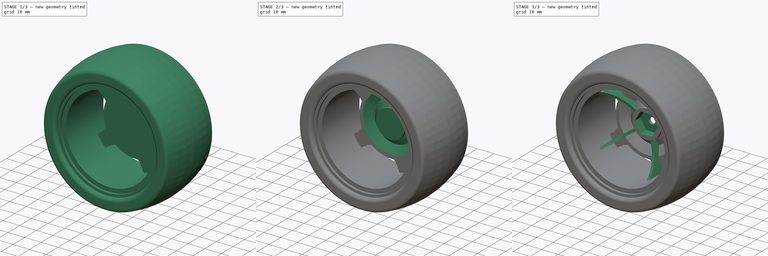
[diagram: build sequence overview — one tinted view per stage of 3, left to right]
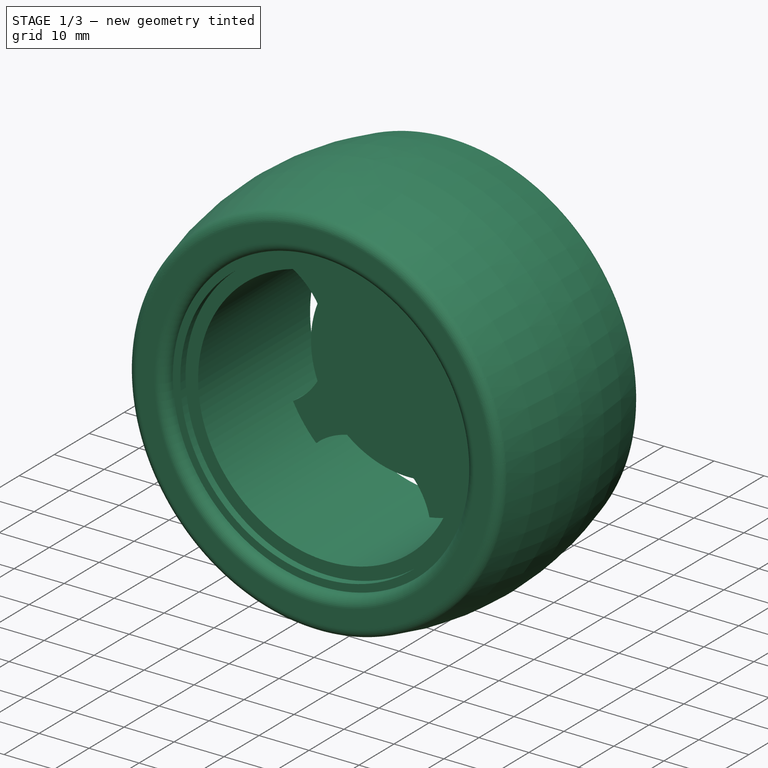
[diagram: stage 1 of 3 — iso view after this stage's code; geometry added in this stage tinted green]
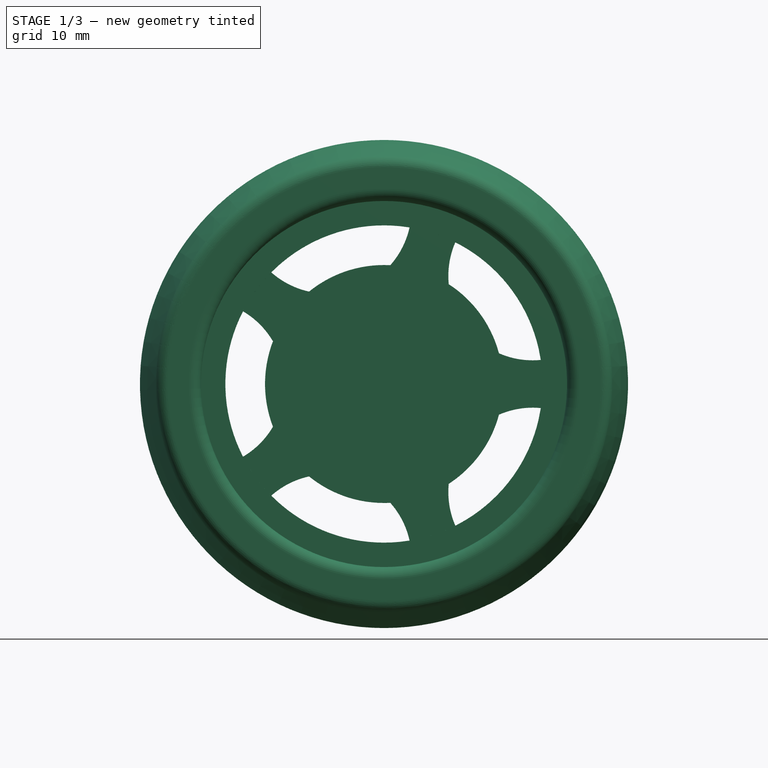
[diagram: stage 1 of 3 — front view after this stage's code; geometry added in this stage tinted green]
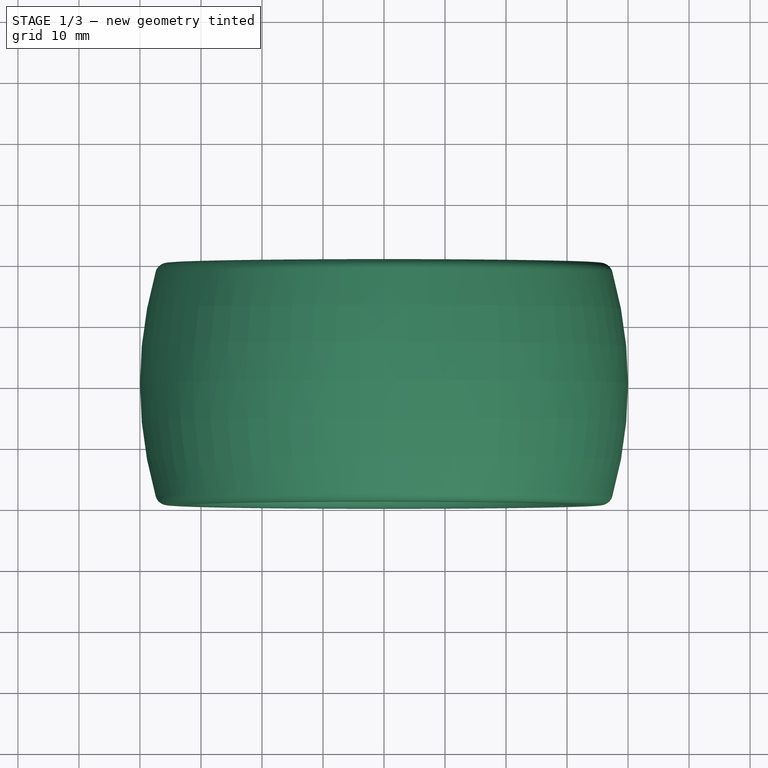
[diagram: stage 1 of 3 — top view after this stage's code; geometry added in this stage tinted green]
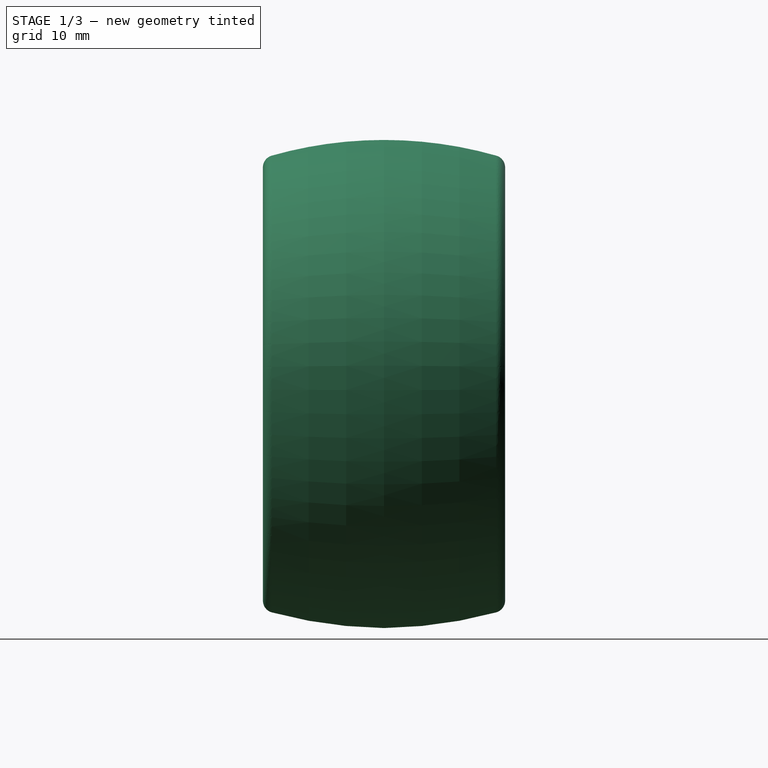
[diagram: stage 1 of 3 — right view after this stage's code; geometry added in this stage tinted green]
FCSTD DOCUMENT  (FreeCAD 0.18.4R)
Label: wheel
License: All rights reserved
LicenseURL: http://en.wikipedia.org/wiki/All_rights_reserved
objects: Sketcher::SketchObject×7, PartDesign::Pad×3, PartDesign::Revolution×2, PartDesign::Plane×1, PartDesign::Groove×1, PartDesign::PolarPattern×1, PartDesign::Pocket×1, PartDesign::Body×1
note: 24 computed .brp shape members not serialized (recipe doc carries the construction recipe); baked Part::Feature solids carry a one-line shape summary decoded from their .brp

FEATURE [Sketcher::SketchObject] Sketch
  MapMode = 5
  Placement = pos=(0,0,0) rot=(0.57735,0.57735,0.57735;2.0944rad)
  Support = -> [YZ_Plane]
  sketch-geometry (17):
    g0: LineSegment StartX=16 StartY=28.5 StartZ=0 EndX=16 EndY=26 EndZ=0
    g1: LineSegment StartX=16 StartY=26 StartZ=0 EndX=-16 EndY=26 EndZ=0
    g2: LineSegment StartX=-16 StartY=26 StartZ=0 EndX=-16 EndY=28.5 EndZ=0
    g3: LineSegment StartX=-16 StartY=28.5 StartZ=0 EndX=-17.5 EndY=28.5 EndZ=0
    g4: LineSegment StartX=-17.5 StartY=28.5 StartZ=0 EndX=-17.5 EndY=30 EndZ=0
    g5: LineSegment StartX=-17.5 StartY=30 StartZ=0 EndX=-17.85 EndY=30 EndZ=0
    g6: LineSegment StartX=-19.85 StartY=32 StartZ=0 EndX=-19.85 EndY=35.5078 EndZ=0
    g7: LineSegment StartX=19.85 StartY=35.5078 StartZ=0 EndX=19.85 EndY=32 EndZ=0
    g8: LineSegment StartX=17.85 StartY=30 StartZ=0 EndX=17.5 EndY=30 EndZ=0
    g9: LineSegment StartX=17.5 StartY=30 StartZ=0 EndX=17.5 EndY=28.5 EndZ=0
    g10: LineSegment StartX=17.5 StartY=28.5 StartZ=0 EndX=16 EndY=28.5 EndZ=0
    g11: ArcOfCircle CenterX=5.199e-13 CenterY=-27.17 CenterZ=0 NormalX=0 NormalY=0 NormalZ=1 AngleXU=0 Radius=67.17 StartAngle=1.5708 EndAngle=1.84824
    g12: ArcOfCircle CenterX=5.199e-13 CenterY=-27.17 CenterZ=0 NormalX=0 NormalY=0 NormalZ=1 AngleXU=0 Radius=67.17 StartAngle=1.29335 EndAngle=1.5708
    g13: ArcOfCircle CenterX=-17.85 CenterY=32 CenterZ=0 NormalX=0 NormalY=0 NormalZ=1 AngleXU=0 Radius=2 StartAngle=3.14159 EndAngle=4.71239
    g14: ArcOfCircle CenterX=17.85 CenterY=32 CenterZ=0 NormalX=0 NormalY=0 NormalZ=1 AngleXU=0 Radius=2 StartAngle=4.71239 EndAngle=6.28319
    g15: ArcOfCircle CenterX=-17.85 CenterY=35.5078 CenterZ=0 NormalX=0 NormalY=0 NormalZ=1 AngleXU=0 Radius=2 StartAngle=1.84824 EndAngle=3.14159
    g16: ArcOfCircle CenterX=17.85 CenterY=35.5078 CenterZ=0 NormalX=0 NormalY=0 NormalZ=1 AngleXU=0 Radius=2 StartAngle=-9e-16 EndAngle=1.29335
  constraints (44):
    c: Coincident(g0,g1)
    c: Coincident(g1,g2)
    c: Coincident(g2,g3)
    c: Coincident(g3,g4)
    c: Coincident(g4,g5)
    c: Coincident(g8,g9)
    c: Coincident(g9,g10)
    c: Coincident(g10,g0)
    c: Vertical(g0)
    c: Vertical(g9)
    c: Vertical(g7)
    c: Horizontal(g8)
    c: Horizontal(g10)
    c: Horizontal(g1)
    c: Vertical(g2)
    c: Horizontal(g3)
    c: Horizontal(g5)
    c: Symmetric(g4,g8,g-2)
    c: DistanceX(g4,g8) = 35
    c: Equal(g3,g10)
    c: DistanceX(g10,g10) = 1.5
    c: DistanceY(g-1,g1) = 26
    c: DistanceY(g-1,g3) = 28.5
    c: DistanceY(g-1,g4) = 30
    c: Symmetric(g2,g0,g-2)
    c: Tangent(g11,g12) = -1.5708
    c: PointOnObject(g11,g-2)
    c: Coincident(g12,g11)
    c: DistanceY(g-1,g11) = 40
    c: Tangent(g5,g13) = 1.5708
    c: Tangent(g6,g13) = 1.5708
    c: Tangent(g7,g14) = 1.5708
    c: Tangent(g8,g14) = 1.5708
    c: Radius(g14) = 2
    c: DistanceX(g6,g7) = 39.7
    c: DistanceY(g11,g-1) = 27.17
    c: Tangent(g11,g15) = -1.5708
    c: Tangent(g6,g15) = 1.5708
    c: Tangent(g12,g16) = -1.5708
    c: Tangent(g7,g16) = 1.5708
    c: Symmetric(g6,g7,g-2)
    c: Equal(g16,g15)
    c: Radius(g16) = 2
    c: Symmetric(g6,g7,g-2)
FEATURE [PartDesign::Revolution] Revolution
  Angle = 360
  Axis = (3e-16,1,-2e-16)
  Base = (0,0,0)
  Placement = pos=(0,0,0) rot=(0.57735,0.57735,0.57735;2.0944rad)
  Profile = -> Sketch
  ReferenceAxis = -> Sketch [H_Axis]
FEATURE [PartDesign::Plane] DatumPlane
  AttachmentOffset = pos=(0,0,7) rot=(0,0,1;0rad)
  Length = 95.925
  MapMode = 4
  Placement = pos=(0,7,0) rot=(0.57735,0.57735,0.57735;4.18879rad)
  ResizeMode = 0
  Support = -> [Revolution]
  Width = 95.9576
FEATURE [Sketcher::SketchObject] Sketch001
  MapMode = 5
  Placement = pos=(0,7,0) rot=(0.57735,0.57735,0.57735;4.18879rad)
  Support = -> [DatumPlane]
  sketch-geometry (26):
    g0: LineSegment [constr] StartX=7 StartY=-18.2003 StartZ=0 EndX=19.4726 EndY=1.0332 EndZ=0
    g1: LineSegment [constr] StartX=19.4726 StartY=1.0332 StartZ=0 EndX=5.03473 EndY=18.8388 EndZ=0
    g2: LineSegment [constr] StartX=5.03473 StartY=18.8388 StartZ=0 EndX=-16.361 EndY=10.6098 EndZ=0
    g3: LineSegment [constr] StartX=-16.361 StartY=10.6098 StartZ=0 EndX=-15.1464 EndY=-12.2816 EndZ=0
    g4: LineSegment [constr] StartX=-15.1464 StartY=-12.2816 StartZ=0 EndX=7 EndY=-18.2003 EndZ=0
    g5: Circle [constr] CenterX=0 CenterY=0 CenterZ=0 NormalX=0 NormalY=0 NormalZ=1 AngleXU=0 Radius=19.5
    g6: ArcOfCircle CenterX=0 CenterY=0 CenterZ=0 NormalX=0 NormalY=0 NormalZ=1 AngleXU=0 Radius=19.5 StartAngle=5.60186 EndAngle=6.33619
    g7: ArcOfCircle CenterX=0 CenterY=0 CenterZ=0 NormalX=0 NormalY=0 NormalZ=1 AngleXU=0 Radius=19.5 StartAngle=4.34522 EndAngle=5.07956
    g8: ArcOfCircle CenterX=0 CenterY=0 CenterZ=0 NormalX=0 NormalY=0 NormalZ=1 AngleXU=0 Radius=19.5 StartAngle=3.08858 EndAngle=3.82292
    g9: ArcOfCircle CenterX=0 CenterY=0 CenterZ=0 NormalX=0 NormalY=0 NormalZ=1 AngleXU=0 Radius=19.5 StartAngle=1.83195 EndAngle=2.56628
    g10: ArcOfCircle CenterX=0 CenterY=0 CenterZ=0 NormalX=0 NormalY=0 NormalZ=1 AngleXU=0 Radius=19.5 StartAngle=0.575309 EndAngle=1.30965
    g11: ArcOfCircle CenterX=17.7078 CenterY=24.3726 CenterZ=0 NormalX=0 NormalY=0 NormalZ=1 AngleXU=0 Radius=13.8285 StartAngle=3.00933 EndAngle=3.5533
    g12: ArcOfCircle CenterX=17.7078 CenterY=24.3726 CenterZ=0 NormalX=0 NormalY=0 NormalZ=1 AngleXU=0 Radius=13.8285 StartAngle=4.61484 EndAngle=5.15882
    g13: ArcOfCircle CenterX=0 CenterY=0 CenterZ=0 NormalX=0 NormalY=0 NormalZ=1 AngleXU=0 Radius=26.5 StartAngle=0.162637 EndAngle=0.465682
    g14: ArcOfCircle CenterX=0 CenterY=0 CenterZ=0 NormalX=0 NormalY=0 NormalZ=1 AngleXU=0 Radius=26.5 StartAngle=1.41927 EndAngle=1.72232
    g15: ArcOfCircle CenterX=-17.7078 CenterY=24.3726 CenterZ=0 NormalX=0 NormalY=0 NormalZ=1 AngleXU=0 Radius=13.8285 StartAngle=5.87148 EndAngle=6.41545
    g16: ArcOfCircle CenterX=-17.7078 CenterY=24.3726 CenterZ=0 NormalX=0 NormalY=0 NormalZ=1 AngleXU=0 Radius=13.8285 StartAngle=4.26596 EndAngle=4.80994
    g17: ArcOfCircle CenterX=-28.6518 CenterY=-9.30952 CenterZ=0 NormalX=0 NormalY=0 NormalZ=1 AngleXU=0 Radius=13.8285 StartAngle=0.844931 EndAngle=1.3889
    g18: ArcOfCircle CenterX=-28.6518 CenterY=-9.30952 CenterZ=0 NormalX=0 NormalY=0 NormalZ=1 AngleXU=0 Radius=13.8285 StartAngle=5.5226 EndAngle=6.06657
    g19: ArcOfCircle CenterX=3.8e-15 CenterY=-30.1262 CenterZ=0 NormalX=0 NormalY=0 NormalZ=1 AngleXU=0 Radius=13.8285 StartAngle=2.10157 EndAngle=2.64554
    g20: ArcOfCircle CenterX=3.8e-15 CenterY=-30.1262 CenterZ=0 NormalX=0 NormalY=0 NormalZ=1 AngleXU=0 Radius=13.8285 StartAngle=0.496052 EndAngle=1.04002
    g21: ArcOfCircle CenterX=28.6518 CenterY=-9.30952 CenterZ=0 NormalX=0 NormalY=0 NormalZ=1 AngleXU=0 Radius=13.8285 StartAngle=3.35821 EndAngle=3.90218
    g22: ArcOfCircle CenterX=28.6518 CenterY=-9.30952 CenterZ=0 NormalX=0 NormalY=0 NormalZ=1 AngleXU=0 Radius=13.8285 StartAngle=1.75269 EndAngle=2.29666
    g23: ArcOfCircle CenterX=0 CenterY=0 CenterZ=0 NormalX=0 NormalY=0 NormalZ=1 AngleXU=0 Radius=26.5 StartAngle=2.67591 EndAngle=2.97896
    g24: ArcOfCircle CenterX=0 CenterY=0 CenterZ=0 NormalX=0 NormalY=0 NormalZ=1 AngleXU=0 Radius=26.5 StartAngle=3.93255 EndAngle=4.23559
    g25: ArcOfCircle CenterX=0 CenterY=0 CenterZ=0 NormalX=0 NormalY=0 NormalZ=1 AngleXU=0 Radius=26.5 StartAngle=5.18918 EndAngle=5.49223
  constraints (74):
    c: Coincident(g0,g1)
    c: Coincident(g1,g2)
    c: Coincident(g2,g3)
    c: Coincident(g3,g4)
    c: Coincident(g4,g0)
    c: Equal(g0, g1-g4) x4
    c: PointOnObject(g0,g5)
    c: PointOnObject(g1,g5)
    c: PointOnObject(g2,g5)
    c: PointOnObject(g3,g5)
    c: PointOnObject(g4,g5)
    c: Coincident(g5,g-1)
    c: Coincident(g10,g6)
    c: Coincident(g10,g7)
    c: Coincident(g10,g8)
    c: Coincident(g10,g9)
    c: Coincident(g10,g-1)
    c: Coincident(g10,g1)
    c: Coincident(g6,g0)
    c: Coincident(g7,g0)
    c: Coincident(g8,g3)
    c: Coincident(g9,g2)
    c: Distance(g8,g8) = 14
    c: Distance(g9,g9) = 14
    c: Distance(g10,g10) = 14
    c: Distance(g6,g6) = 14
    c: Distance(g7,g7) = 14
    c: Diameter(g5) = 39
    c: DistanceX(g-2,g7) = -7
    c: Coincident(g11,g10)
    c: Coincident(g12,g10)
    c: Coincident(g12,g11)
    c: Coincident(g14,g13)
    c: Coincident(g14,g6)
    c: Coincident(g14,g11)
    c: Coincident(g13,g12)
    c: Equal(g14,g13)
    c: Diameter(g14) = 53
    c: Equal(g12,g11)
    c: Coincident(g15,g16)
    c: Coincident(g15,g14)
    c: Coincident(g15,g9)
    c: Coincident(g16,g9)
    c: Coincident(g17,g8)
    c: Coincident(g17,g18)
    c: Coincident(g18,g8)
    c: Equal(g18,g17)
    c: Equal(g17,g16)
    c: Equal(g16,g15)
    c: Equal(g15,g11)
    c: Coincident(g22,g21)
    c: Coincident(g20,g19)
    c: Coincident(g19,g7)
    c: Coincident(g20,g7)
    c: Coincident(g21,g6)
    c: Coincident(g22,g6)
    c: Coincident(g22,g13)
    c: Equal(g19,g20)
    c: Equal(g20,g21)
    c: Equal(g21,g22)
    c: Equal(g22,g12)
    c: Coincident(g25,g23)
    c: Coincident(g25,g24)
    c: Coincident(g25,g6)
    c: Coincident(g20,g25)
    c: Coincident(g21,g25)
    c: Coincident(g24,g19)
    c: Coincident(g24,g18)
    c: Coincident(g23,g17)
    c: Coincident(g23,g16)
    c: Equal(g23,g24)
    c: Equal(g24,g25)
    c: Equal(g25,g13)
    c: Distance(g16,g17) = 8
FEATURE [PartDesign::Pad] Pad
  BaseFeature = -> Revolution
  Length = 2
  Length2 = 100
  Placement = pos=(0,0,0) rot=(0.57735,0.57735,0.57735;2.0944rad)
  Profile = -> Sketch001
  Type = 0
FEATURE [Sketcher::SketchObject] Sketch002
  MapMode = 5
  Placement = pos=(0,7,0) rot=(0.57735,0.57735,-0.57735;2.0944rad)
  Support = -> [Pad]
  sketch-geometry (1):
    g0: Circle CenterX=0 CenterY=0 CenterZ=0 NormalX=0 NormalY=0 NormalZ=1 AngleXU=0 Radius=8.5
  constraints (2):
    c: Coincident(g0,g-1)
    c: Diameter(g0) = 17
FEATURE [Sketcher::SketchObject] Sketch004
  MapMode = 5
  Placement = pos=(0,0,0) rot=(0.57735,0.57735,0.57735;2.0944rad)
  Support = -> [YZ_Plane]
  sketch-geometry (9):
    g0: LineSegment StartX=9 StartY=-2 StartZ=0 EndX=9 EndY=-19.5 EndZ=0
    g1: LineSegment StartX=9 StartY=-19.5 StartZ=0 EndX=9.5 EndY=-19.5 EndZ=0
    g2: LineSegment StartX=9.5 StartY=-19.5 StartZ=0 EndX=12 EndY=-12.5 EndZ=0
    g3: LineSegment StartX=12 StartY=-12.5 StartZ=0 EndX=11 EndY=-7 EndZ=0
    g4: LineSegment StartX=11 StartY=-7 StartZ=0 EndX=14 EndY=-7 EndZ=0
    g5: LineSegment StartX=14 StartY=-7 StartZ=0 EndX=14 EndY=-5 EndZ=0
    g6: LineSegment StartX=14 StartY=-5 StartZ=0 EndX=12 EndY=-5 EndZ=0
    g7: LineSegment StartX=12 StartY=-5 StartZ=0 EndX=12 EndY=-2 EndZ=0
    g8: LineSegment StartX=12 StartY=-2 StartZ=0 EndX=9 EndY=-2 EndZ=0
  constraints (27):
    c: Coincident(g0,g1)
    c: Coincident(g1,g2)
    c: Coincident(g2,g3)
    c: Coincident(g3,g4)
    c: Coincident(g4,g5)
    c: Coincident(g5,g6)
    c: Coincident(g6,g7)
    c: Coincident(g7,g8)
    c: Coincident(g0,g8)
    c: Vertical(g0)
    c: DistanceX(g-1,g0) = 9
    c: DistanceY(g0,g-1) = 19.5
    c: Horizontal(g1)
    c: DistanceY(g0,g-1) = 2
    c: Horizontal(g8)
    c: Vertical(g7)
    c: DistanceX(g8,g8) = 3
    c: Horizontal(g6)
    c: DistanceX(g6,g6) = 2
    c: DistanceY(g5,g-1) = 5
    c: DistanceY(g4,g-1) = 7
    c: Vertical(g5)
    c: DistanceX(g0,g2) = 3
    c: DistanceX(g1,g1) = 0.5
    c: Horizontal(g4)
    c: DistanceX(g4,g4) = 3
    c: DistanceY(g2,g-1) = 12.5
FEATURE [PartDesign::Revolution] Revolution001
  Angle = 360
  Axis = (3e-16,1,-2e-16)
  Base = (0,0,0)
  BaseFeature = -> Pad
  Placement = pos=(0,0,0) rot=(0.57735,0.57735,0.57735;2.0944rad)
  Profile = -> Sketch004
  ReferenceAxis = -> Sketch004 [H_Axis]
  Reversed = true
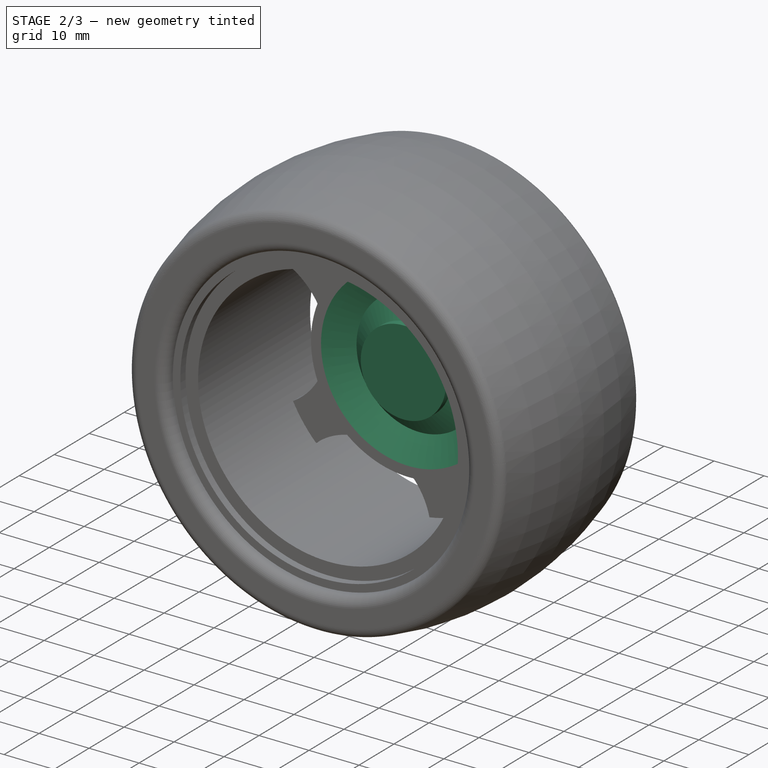
[diagram: stage 2 of 3 — iso view after this stage's code; geometry added in this stage tinted green]
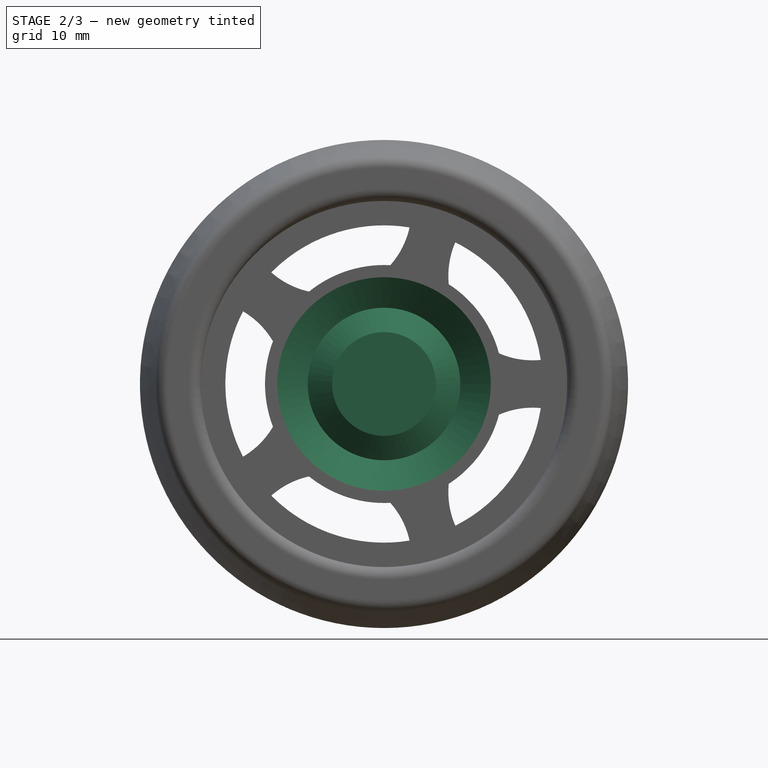
[diagram: stage 2 of 3 — front view after this stage's code; geometry added in this stage tinted green]
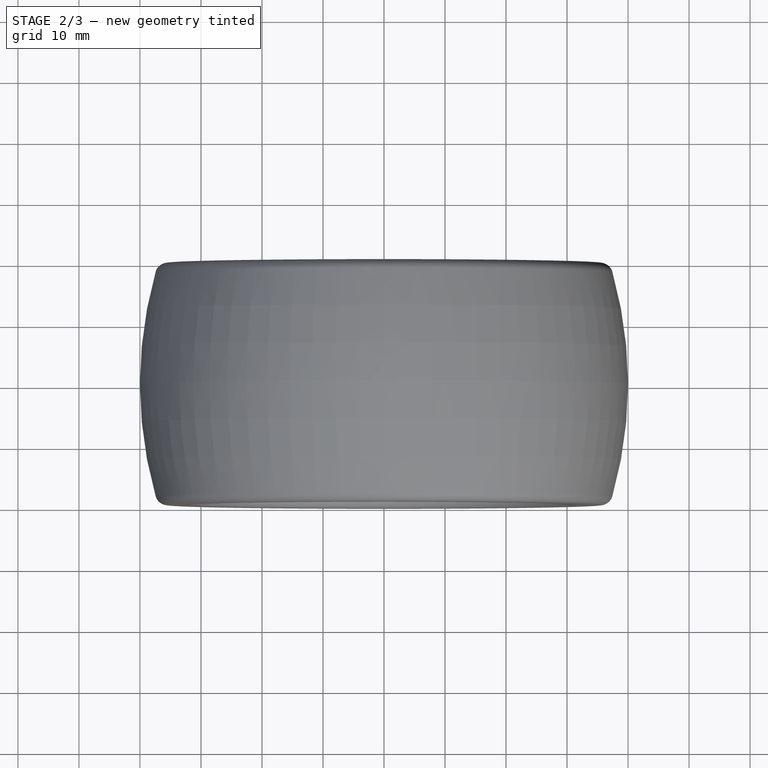
[diagram: stage 2 of 3 — top view after this stage's code; geometry added in this stage tinted green]
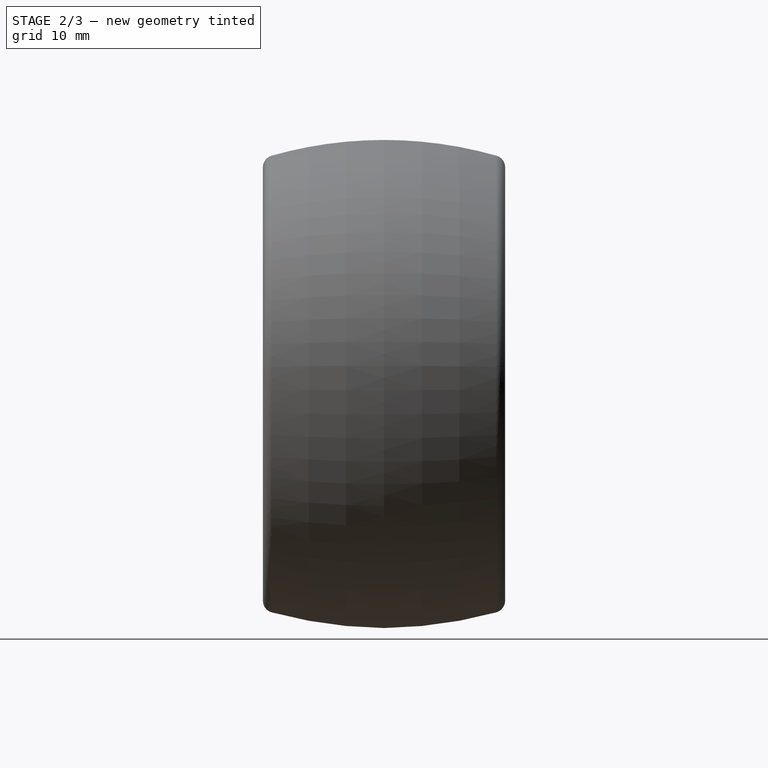
[diagram: stage 2 of 3 — right view after this stage's code; geometry added in this stage tinted green]
FEATURE [Sketcher::SketchObject] Sketch005
  MapMode = 5
  Support = -> [XY_Plane]
  sketch-geometry (3):
    g0: LineSegment StartX=7.5 StartY=7 StartZ=0 EndX=17.5 EndY=7 EndZ=0
    g1: LineSegment StartX=17.5 StartY=7 StartZ=0 EndX=12.5 EndY=10 EndZ=0
    g2: LineSegment StartX=12.5 StartY=10 StartZ=0 EndX=7.5 EndY=7 EndZ=0
  constraints (9):
    c: Coincident(g0,g1)
    c: Coincident(g1,g2)
    c: Coincident(g0,g2)
    c: DistanceY(g-1,g0) = 7
    c: Horizontal(g0)
    c: DistanceY(g0,g1) = 3
    c: DistanceX(g-1,g0) = 17.5
    c: DistanceX(g-1,g1) = 12.5
    c: DistanceX(g-1,g0) = 7.5
FEATURE [PartDesign::Groove] Groove
  Angle = 360
  Axis = (0,1,0)
  Base = (0,0,0)
  BaseFeature = -> Revolution001
  Placement = pos=(0,0,0) rot=(0.57735,0.57735,0.57735;2.0944rad)
  Profile = -> Sketch005
  ReferenceAxis = -> Sketch005 [V_Axis]
FEATURE [PartDesign::Pad] Pad001
  BaseFeature = -> Groove
  Length = 1.5
  Length2 = 100
  Placement = pos=(0,0,0) rot=(0.57735,0.57735,0.57735;2.0944rad)
  Profile = -> Sketch002
  Type = 0
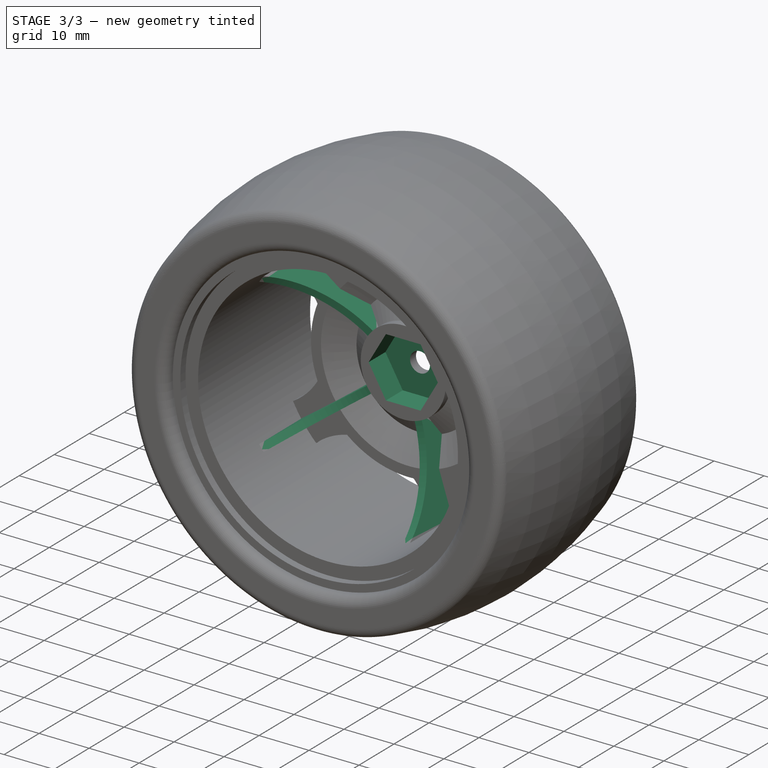
[diagram: stage 3 of 3 — iso view after this stage's code; geometry added in this stage tinted green]
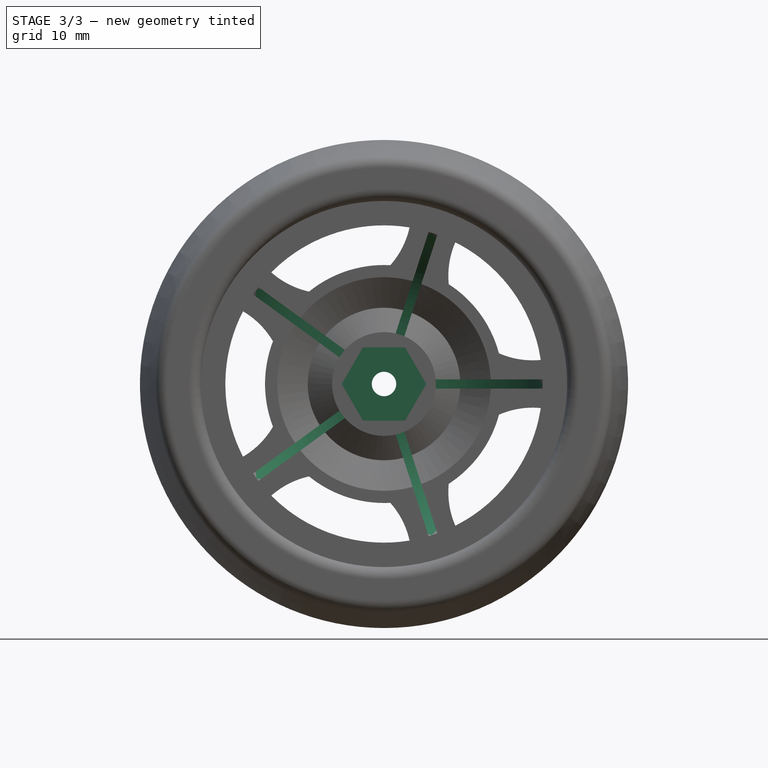
[diagram: stage 3 of 3 — front view after this stage's code; geometry added in this stage tinted green]
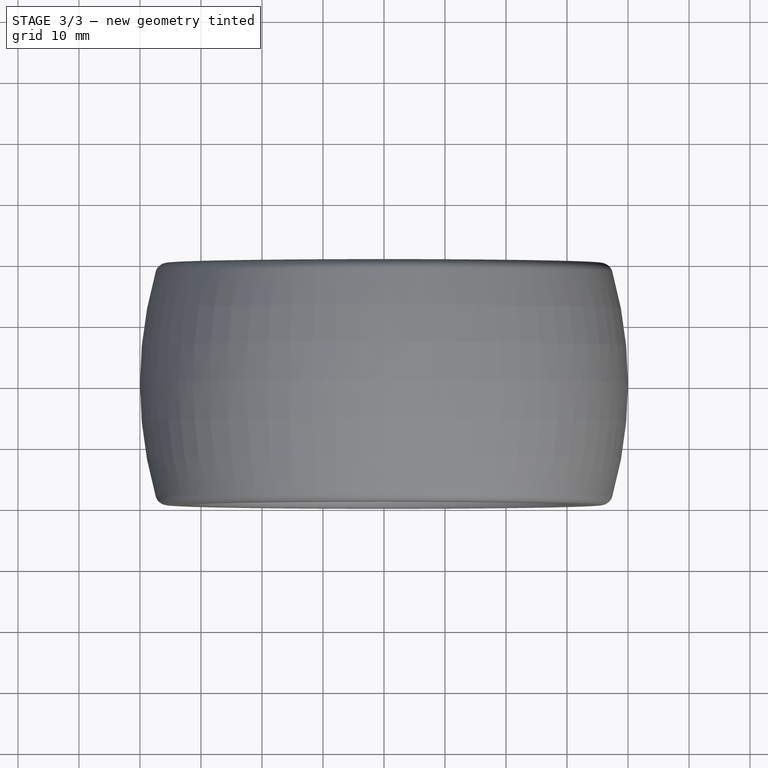
[diagram: stage 3 of 3 — top view after this stage's code; geometry added in this stage tinted green]
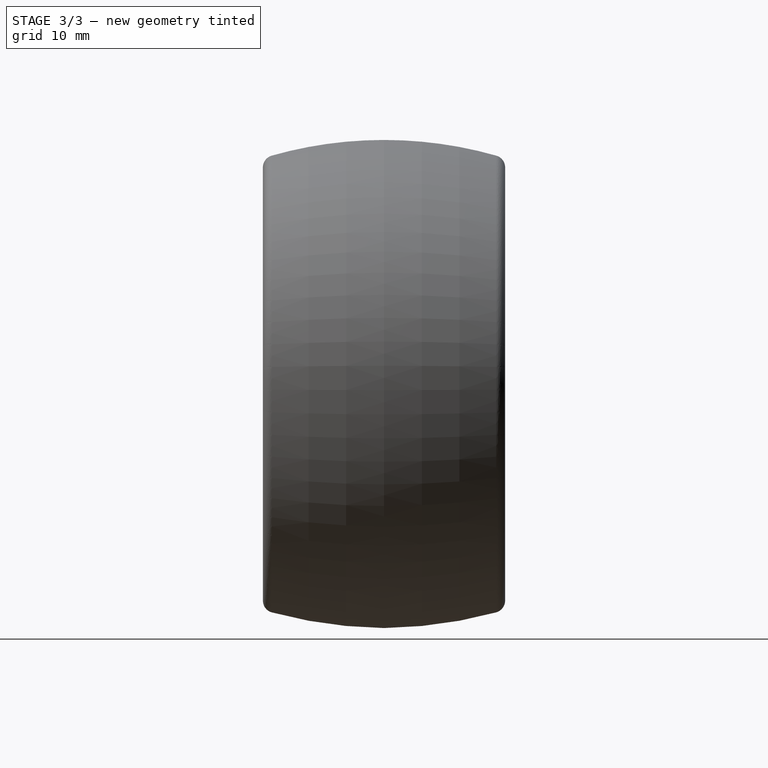
[diagram: stage 3 of 3 — right view after this stage's code; geometry added in this stage tinted green]
FEATURE [Sketcher::SketchObject] Sketch003
  MapMode = 5
  Placement = pos=(6e-16,5.5,0) rot=(0.57735,0.57735,-0.57735;2.0944rad)
  Support = -> [Pad001]
  sketch-geometry (7):
    g0: LineSegment StartX=6 StartY=-3.4641 StartZ=0 EndX=6 EndY=3.4641 EndZ=0
    g1: LineSegment StartX=6 StartY=3.4641 StartZ=0 EndX=9e-16 EndY=6.9282 EndZ=0
    g2: LineSegment StartX=9e-16 StartY=6.9282 StartZ=0 EndX=-6 EndY=3.4641 EndZ=0
    g3: LineSegment StartX=-6 StartY=3.4641 StartZ=0 EndX=-6 EndY=-3.4641 EndZ=0
    g4: LineSegment StartX=-6 StartY=-3.4641 StartZ=0 EndX=0 EndY=-6.9282 EndZ=0
    g5: LineSegment StartX=0 StartY=-6.9282 StartZ=0 EndX=6 EndY=-3.4641 EndZ=0
    g6: Circle [constr] CenterX=0 CenterY=0 CenterZ=0 NormalX=0 NormalY=0 NormalZ=1 AngleXU=0 Radius=6.9282
  constraints (16):
    c: Coincident(g0,g1)
    c: Coincident(g1,g2)
    c: Coincident(g2,g3)
    c: Coincident(g3,g4)
    c: Coincident(g4,g5)
    c: Coincident(g5,g0)
    c: Equal(g0, g1-g5) x5
    c: PointOnObject(g0,g6)
    c: PointOnObject(g1,g6)
    c: PointOnObject(g2,g6)
    c: PointOnObject(g3,g6)
    c: PointOnObject(g4,g6)
    c: PointOnObject(g5,g6)
    c: Coincident(g6,g-1)
    c: Vertical(g3)
    c: DistanceX(g2,g0) = 12
FEATURE [Sketcher::SketchObject] Sketch006
  MapMode = 5
  Support = -> [XY_Plane]
  sketch-geometry (6):
    g0: LineSegment StartX=26.5 StartY=-6 StartZ=0 EndX=26.5 EndY=8 EndZ=0
    g1: LineSegment StartX=26.5 StartY=8 StartZ=0 EndX=17.5 EndY=8 EndZ=0
    g2: LineSegment StartX=17.5 StartY=8 StartZ=0 EndX=12.5 EndY=12 EndZ=0
    g3: LineSegment StartX=12.5 StartY=12 StartZ=0 EndX=6.25 EndY=14 EndZ=0
    g4: LineSegment StartX=6.25 StartY=14 StartZ=0 EndX=6.25 EndY=6 EndZ=0
    g5: ArcOfCircle CenterX=7.23279 CenterY=-15.4275 CenterZ=0 NormalX=0 NormalY=0 NormalZ=1 AngleXU=0 Radius=21.45 StartAngle=0.455052 EndAngle=1.61663
  constraints (19):
    c: Coincident(g0,g1)
    c: Coincident(g1,g2)
    c: Coincident(g2,g3)
    c: Coincident(g3,g4)
    c: Horizontal(g1)
    c: Vertical(g0)
    c: Vertical(g4)
    c: Coincident(g5,g0)
    c: Coincident(g5,g4)
    c: Diameter(g5) = 42.9
    c: DistanceY(g0,g0) = 14
    c: DistanceY(g4,g4) = 8
    c: DistanceY(g0,g-1) = 6
    c: DistanceX(g-1,g2) = 12.5
    c: DistanceX(g-1,g3) = 6.25
    c: DistanceX(g-1,g1) = 17.5
    c: DistanceX(g-1,g0) = 26.5
    c: DistanceY(g-1,g4) = 6
    c: DistanceY(g2,g3) = 2
FEATURE [PartDesign::Pad] Pad002
  BaseFeature = -> Pad001
  Length = 1.5
  Length2 = 100
  Midplane = true
  Placement = pos=(0,0,0) rot=(0.57735,0.57735,0.57735;2.0944rad)
  Profile = -> Sketch006
  Type = 0
FEATURE [PartDesign::PolarPattern] PolarPattern
  Angle = 360
  Axis = -> Y_Axis
  BaseFeature = -> Pad002
  Occurrences = 5
  Originals = -> [Pad002]
  Placement = pos=(0,0,0) rot=(0.57735,0.57735,0.57735;2.0944rad)
FEATURE [PartDesign::Pocket] Pocket
  BaseFeature = -> PolarPattern
  Length = 4.8
  Length2 = 100
  Placement = pos=(0,0,0) rot=(0.57735,0.57735,0.57735;2.0944rad)
  Profile = -> Sketch003
  Type = 0
FEATURE [PartDesign::Body] Body
  Group = -> [Sketch,Revolution,DatumPlane,Sketch001,Pad,Sketch002,Sketch003,Sketch004,Sketch005,Revolution001,Groove,Pad001,Pad002,PolarPattern,Pocket,Sketch006]
  Origin = -> Origin
  Tip = -> Pad
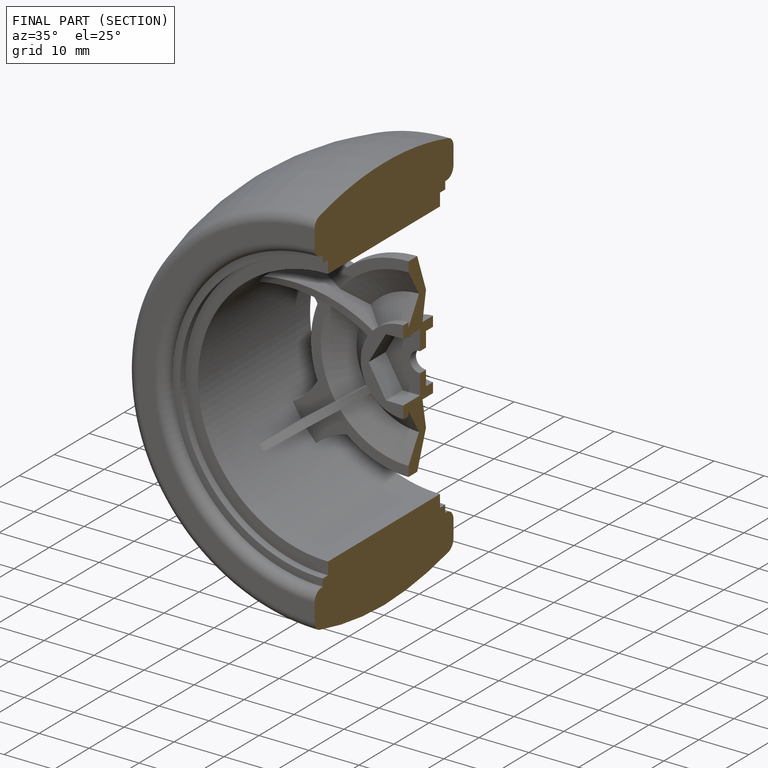
[diagram: finished part — half-section view (interior)]
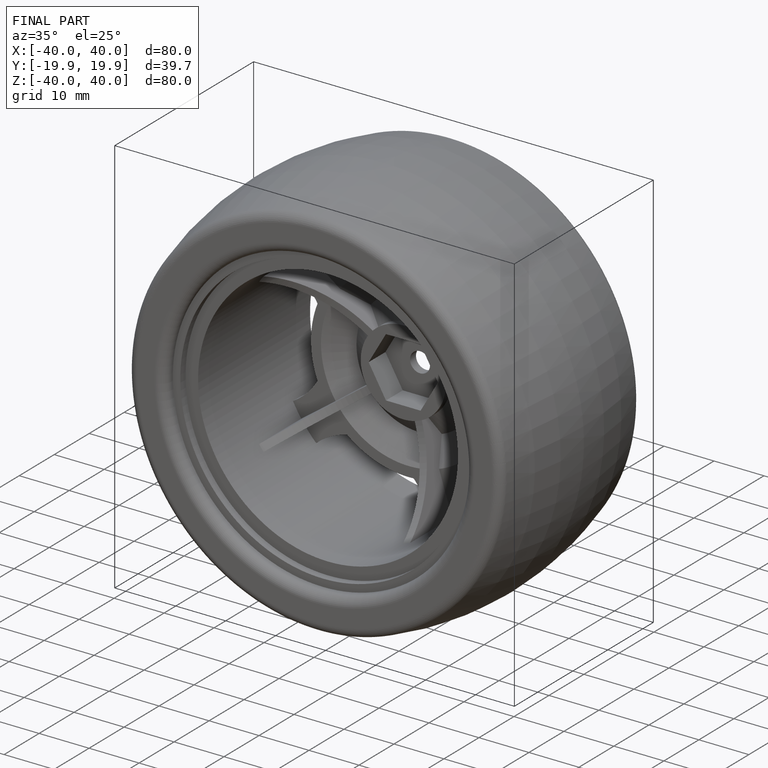
[diagram: finished part — iso view with bounding-box wireframe]
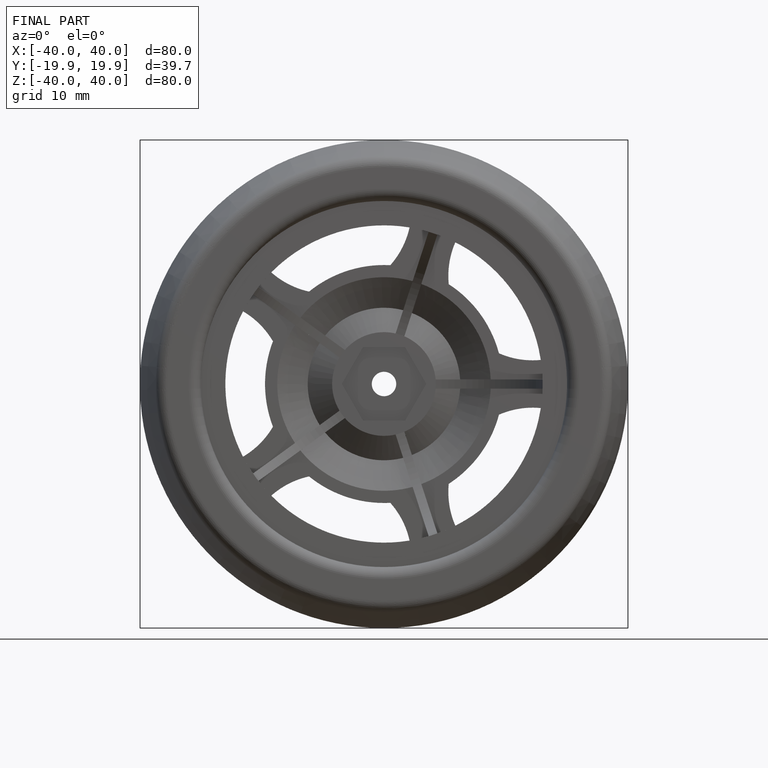
[diagram: finished part — front view with bounding-box wireframe]
